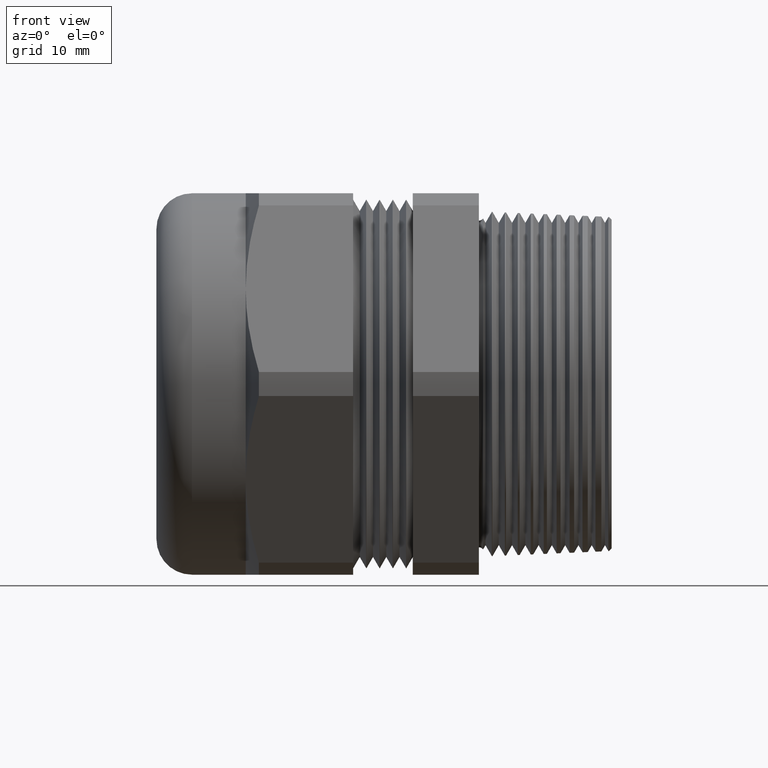
[diagram: clean part render]
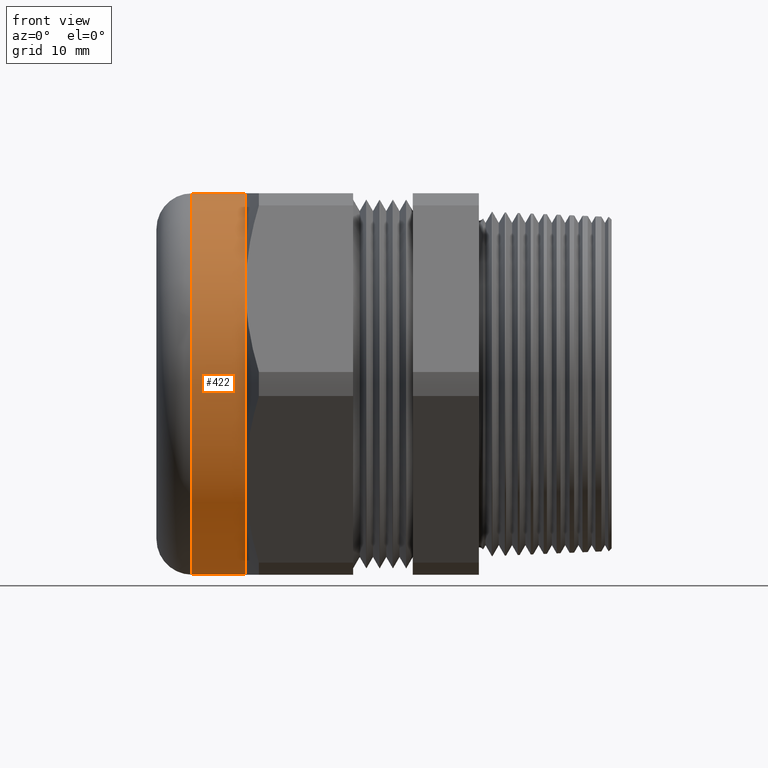
[diagram: same view with one face highlighted and labeled with its STEP entity id]
A machine part, front view. The second image highlights one B-rep face of the part: STEP entity #422.
In plain terms, the highlighted cylindrical surface (partial cylindrical patch) has radius 22.987 mm, axis along (-1, 0, 0).
Its self-contained STEP definition (entity closure, byte-faithful):
#55 = VERTEX_POINT ( 'NONE', #1460 ) ;
#139 = VERTEX_POINT ( 'NONE', #1616 ) ;
#403 = ORIENTED_EDGE ( 'NONE', *, *, #404, .T. ) ;
#404 = EDGE_CURVE ( 'NONE', #55, #139, #2117, .T. ) ;
#405 = ORIENTED_EDGE ( 'NONE', *, *, #406, .T. ) ;
#406 = EDGE_CURVE ( 'NONE', #139, #1315, #2112, .T. ) ;
#407 = ORIENTED_EDGE ( 'NONE', *, *, #1311, .T. ) ;
#408 = ORIENTED_EDGE ( 'NONE', *, *, #409, .T. ) ;
#409 = EDGE_CURVE ( 'NONE', #1229, #1255, #2106, .T. ) ;
#422 = ADVANCED_FACE ( 'NONE', ( #2154 ), #2153, .T. ) ;
#423 = EDGE_LOOP ( 'NONE', ( #424, #425, #403, #405, #407, #408 ) ) ;
#424 = ORIENTED_EDGE ( 'NONE', *, *, #1373, .F. ) ;
#425 = ORIENTED_EDGE ( 'NONE', *, *, #426, .T. ) ;
#426 = EDGE_CURVE ( 'NONE', #1371, #55, #2152, .T. ) ;
#1229 = VERTEX_POINT ( 'NONE', #3528 ) ;
#1255 = VERTEX_POINT ( 'NONE', #3595 ) ;
#1311 = EDGE_CURVE ( 'NONE', #1315, #1229, #3720, .T. ) ;
#1315 = VERTEX_POINT ( 'NONE', #3712 ) ;
#1371 = VERTEX_POINT ( 'NONE', #3774 ) ;
#1373 = EDGE_CURVE ( 'NONE', #1371, #1255, #3773, .T. ) ;
#1460 = CARTESIAN_POINT ( 'NONE',  ( -1.106250000000000200, -0.7837529904249169700, -0.4525000000000000100 ) ) ;
#1616 = CARTESIAN_POINT ( 'NONE',  ( -1.106250000000000200, -0.7837529904249172000, 0.4524999999999997400 ) ) ;
#2103 = DIRECTION ( 'NONE',  ( 1.000000000000000000, 0.0000000000000000000, 0.0000000000000000000 ) ) ;
#2104 = CARTESIAN_POINT ( 'NONE',  ( -1.361399999999999900, 0.0000000000000000000, 0.0000000000000000000 ) ) ;
#2105 = AXIS2_PLACEMENT_3D ( 'NONE', #2104, #2103, #2166 ) ;
#2106 = CIRCLE ( 'NONE', #2105, 0.9049999999999999200 ) ;
#2108 = DIRECTION ( 'NONE',  ( 0.0000000000000000000, 0.0000000000000000000, 1.000000000000000000 ) ) ;
#2109 = DIRECTION ( 'NONE',  ( -1.000000000000000000, 0.0000000000000000000, 0.0000000000000000000 ) ) ;
#2110 = CARTESIAN_POINT ( 'NONE',  ( -1.106250000000000200, 0.0000000000000000000, 0.0000000000000000000 ) ) ;
#2111 = AXIS2_PLACEMENT_3D ( 'NONE', #2110, #2109, #2108 ) ;
#2112 = CIRCLE ( 'NONE', #2111, 0.9049999999999999200 ) ;
#2113 = DIRECTION ( 'NONE',  ( 0.0000000000000000000, 0.0000000000000000000, 1.000000000000000000 ) ) ;
#2114 = DIRECTION ( 'NONE',  ( -1.000000000000000000, 0.0000000000000000000, 0.0000000000000000000 ) ) ;
#2115 = CARTESIAN_POINT ( 'NONE',  ( -1.106250000000000200, 0.0000000000000000000, 0.0000000000000000000 ) ) ;
#2116 = AXIS2_PLACEMENT_3D ( 'NONE', #2115, #2114, #2113 ) ;
#2117 = CIRCLE ( 'NONE', #2116, 0.9049999999999999200 ) ;
#2144 = DIRECTION ( 'NONE',  ( 0.0000000000000000000, 0.0000000000000000000, 1.000000000000000000 ) ) ;
#2145 = DIRECTION ( 'NONE',  ( -1.000000000000000000, 0.0000000000000000000, 0.0000000000000000000 ) ) ;
#2146 = CARTESIAN_POINT ( 'NONE',  ( -1.106250000000000200, 0.0000000000000000000, 0.0000000000000000000 ) ) ;
#2147 = AXIS2_PLACEMENT_3D ( 'NONE', #2146, #2145, #2144 ) ;
#2148 = DIRECTION ( 'NONE',  ( 0.0000000000000000000, 0.0000000000000000000, 1.000000000000000000 ) ) ;
#2149 = DIRECTION ( 'NONE',  ( -1.000000000000000000, 0.0000000000000000000, 0.0000000000000000000 ) ) ;
#2150 = CARTESIAN_POINT ( 'NONE',  ( -0.7238591030180623300, 0.0000000000000000000, 0.0000000000000000000 ) ) ;
#2151 = AXIS2_PLACEMENT_3D ( 'NONE', #2150, #2149, #2148 ) ;
#2152 = CIRCLE ( 'NONE', #2147, 0.9049999999999999200 ) ;
#2153 = CYLINDRICAL_SURFACE ( 'NONE', #2151, 0.9049999999999999200 ) ;
#2154 = FACE_OUTER_BOUND ( 'NONE', #423, .T. ) ;
#2166 = DIRECTION ( 'NONE',  ( 0.0000000000000000000, 0.0000000000000000000, -1.000000000000000000 ) ) ;
#3528 = CARTESIAN_POINT ( 'NONE',  ( -1.361399999999999900, 0.0000000000000000000, 0.9049999999999999200 ) ) ;
#3595 = CARTESIAN_POINT ( 'NONE',  ( -1.361399999999999900, 1.108305353228354500E-016, -0.9049999999999999200 ) ) ;
#3712 = CARTESIAN_POINT ( 'NONE',  ( -1.106250000000000200, 0.0000000000000000000, 0.9050000000000000300 ) ) ;
#3717 = DIRECTION ( 'NONE',  ( -1.000000000000000000, 0.0000000000000000000, 0.0000000000000000000 ) ) ;
#3718 = VECTOR ( 'NONE', #3717, 39.37007874015748100 ) ;
#3719 = CARTESIAN_POINT ( 'NONE',  ( -0.7238591030180623300, 0.0000000000000000000, 0.9049999999999999200 ) ) ;
#3720 = LINE ( 'NONE', #3719, #3718 ) ;
#3770 = DIRECTION ( 'NONE',  ( -1.000000000000000000, 0.0000000000000000000, 0.0000000000000000000 ) ) ;
#3771 = VECTOR ( 'NONE', #3770, 39.37007874015748100 ) ;
#3772 = CARTESIAN_POINT ( 'NONE',  ( -0.7238591030180623300, 1.108305353228354500E-016, -0.9049999999999999200 ) ) ;
#3773 = LINE ( 'NONE', #3772, #3771 ) ;
#3774 = CARTESIAN_POINT ( 'NONE',  ( -1.106250000000000200, 0.0000000000000000000, -0.9050000000000000300 ) ) ;